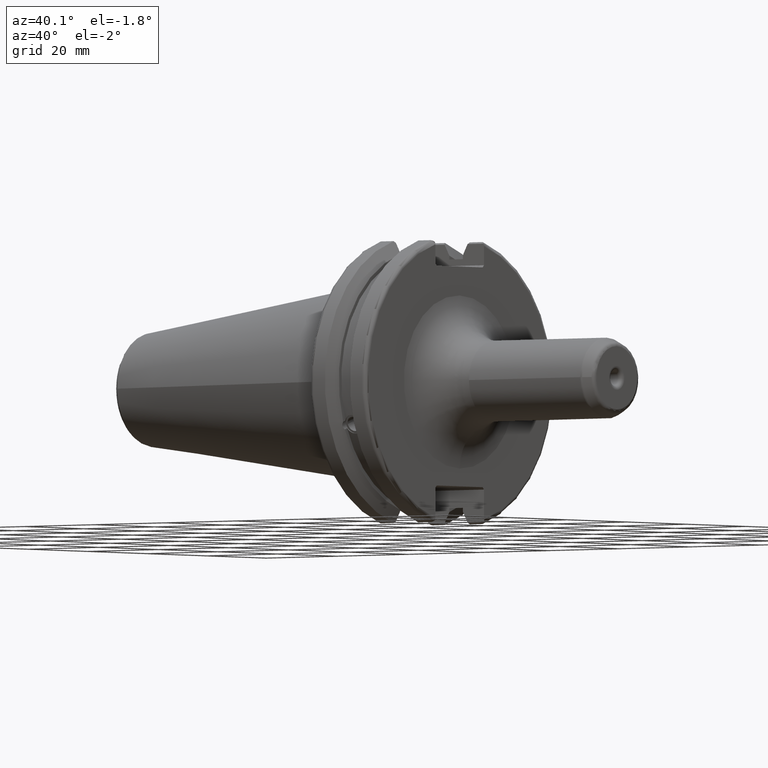
[diagram: clean part render]
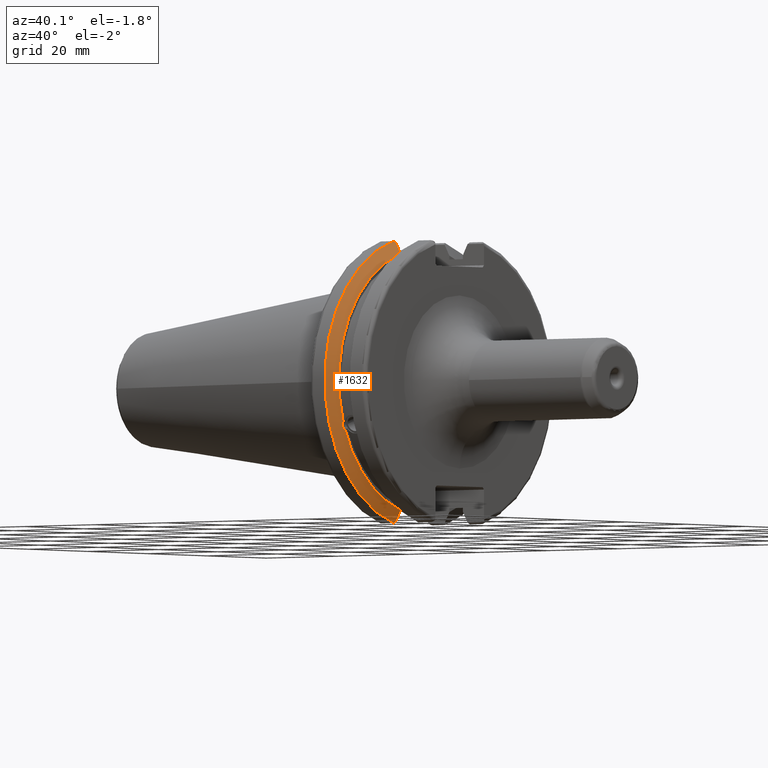
[diagram: same view with one face highlighted and labeled with its STEP entity id]
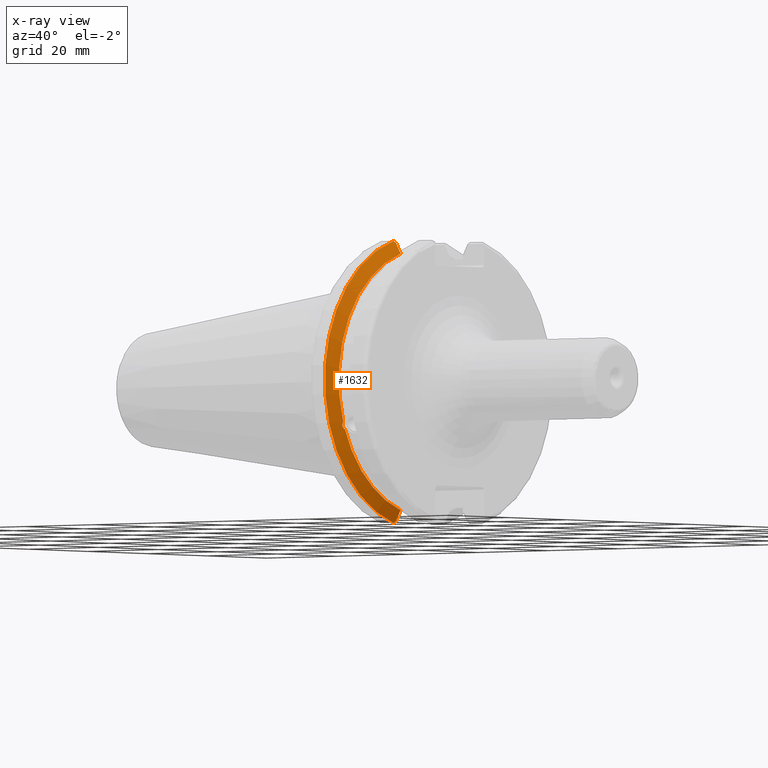
[diagram: x-ray of the same camera — body ghosted, the highlighted face saturated]
A machine part, auxiliary view. The second image highlights one B-rep face of the part: STEP entity #1632.
The next image is the same camera in x-ray: the body ghosted, the highlighted face saturated — about 0% of this face is hidden behind the body in this view.
In plain terms, the highlighted conical surface has half-angle 60 deg.
Its self-contained STEP definition (entity closure, byte-faithful):
#25=(
BOUNDED_CURVE()
B_SPLINE_CURVE(2,(#3019,#3020,#3021),.UNSPECIFIED.,.F.,.F.)
B_SPLINE_CURVE_WITH_KNOTS((3,3),(0.,0.276549142796136),.UNSPECIFIED.)
CURVE()
GEOMETRIC_REPRESENTATION_ITEM()
RATIONAL_B_SPLINE_CURVE((1.,1.00095203903316,1.00031614444813))
REPRESENTATION_ITEM('')
);
#26=(
BOUNDED_CURVE()
B_SPLINE_CURVE(2,(#3031,#3032,#3033),.UNSPECIFIED.,.F.,.F.)
B_SPLINE_CURVE_WITH_KNOTS((3,3),(0.0550586467392022,0.33160778953585),
 .UNSPECIFIED.)
CURVE()
GEOMETRIC_REPRESENTATION_ITEM()
RATIONAL_B_SPLINE_CURVE((1.00031614445148,1.00095203904325,1.))
REPRESENTATION_ITEM('')
);
#27=(
BOUNDED_CURVE()
B_SPLINE_CURVE(2,(#3066,#3067,#3068),.UNSPECIFIED.,.F.,.F.)
B_SPLINE_CURVE_WITH_KNOTS((3,3),(0.,0.0639048713676282),.UNSPECIFIED.)
CURVE()
GEOMETRIC_REPRESENTATION_ITEM()
RATIONAL_B_SPLINE_CURVE((1.,1.00028444218284,1.00047644010574))
REPRESENTATION_ITEM('')
);
#28=(
BOUNDED_CURVE()
B_SPLINE_CURVE(2,(#3074,#3075,#3076),.UNSPECIFIED.,.F.,.F.)
B_SPLINE_CURVE_WITH_KNOTS((3,3),(0.329353533631205,0.393258405001025),
 .UNSPECIFIED.)
CURVE()
GEOMETRIC_REPRESENTATION_ITEM()
RATIONAL_B_SPLINE_CURVE((1.00047644010572,1.00028444218283,1.))
REPRESENTATION_ITEM('')
);
#64=CONICAL_SURFACE('',#1840,30.3546886482472,1.0471975511966);
#78=B_SPLINE_CURVE_WITH_KNOTS('',3,(#2638,#2639,#2640,#2641,#2642,#2643,
#2644,#2645,#2646,#2647,#2648,#2649,#2650,#2651),.UNSPECIFIED.,.F.,.F.,
(4,2,2,2,2,2,4),(0.451995700189024,0.464547828547662,0.504528771685167,
0.544509714822672,0.584490657960178,0.624471601097683,0.63702372945632),
 .UNSPECIFIED.);
#456=FACE_OUTER_BOUND('',#561,.T.);
#561=EDGE_LOOP('',(#1523,#1524,#1525,#1526,#1527,#1528,#1529,#1530));
#601=CIRCLE('',#1734,28.9593772964944);
#623=CIRCLE('',#1790,31.75);
#641=CIRCLE('',#1841,28.9593772964944);
#697=VERTEX_POINT('',#2635);
#698=VERTEX_POINT('',#2637);
#715=VERTEX_POINT('',#2729);
#775=VERTEX_POINT('',#3016);
#776=VERTEX_POINT('',#3018);
#779=VERTEX_POINT('',#3030);
#783=VERTEX_POINT('',#3064);
#784=VERTEX_POINT('',#3070);
#878=EDGE_CURVE('',#698,#697,#78,.T.);
#902=EDGE_CURVE('',#698,#715,#601,.T.);
#985=EDGE_CURVE('',#776,#775,#25,.T.);
#991=EDGE_CURVE('',#779,#715,#26,.T.);
#999=EDGE_CURVE('',#783,#775,#27,.T.);
#1001=EDGE_CURVE('',#783,#784,#623,.T.);
#1002=EDGE_CURVE('',#779,#784,#28,.T.);
#1046=EDGE_CURVE('',#776,#697,#641,.T.);
#1523=ORIENTED_EDGE('',*,*,#878,.T.);
#1524=ORIENTED_EDGE('',*,*,#1046,.F.);
#1525=ORIENTED_EDGE('',*,*,#985,.T.);
#1526=ORIENTED_EDGE('',*,*,#999,.F.);
#1527=ORIENTED_EDGE('',*,*,#1001,.T.);
#1528=ORIENTED_EDGE('',*,*,#1002,.F.);
#1529=ORIENTED_EDGE('',*,*,#991,.T.);
#1530=ORIENTED_EDGE('',*,*,#902,.F.);
#1632=ADVANCED_FACE('',(#456),#64,.T.);
#1734=AXIS2_PLACEMENT_3D('',#2730,#2031,#2032);
#1790=AXIS2_PLACEMENT_3D('',#3072,#2184,#2185);
#1840=AXIS2_PLACEMENT_3D('',#3192,#2305,#2306);
#1841=AXIS2_PLACEMENT_3D('',#3193,#2307,#2308);
#2031=DIRECTION('center_axis',(1.,0.,0.));
#2032=DIRECTION('ref_axis',(0.,0.,-1.));
#2184=DIRECTION('center_axis',(1.,0.,0.));
#2185=DIRECTION('ref_axis',(0.,0.,-1.));
#2305=DIRECTION('center_axis',(-1.,0.,0.));
#2306=DIRECTION('ref_axis',(0.,-1.,-1.22464679914735E-16));
#2307=DIRECTION('center_axis',(1.,0.,0.));
#2308=DIRECTION('ref_axis',(0.,0.,-1.));
#2635=CARTESIAN_POINT('',(9.2191,-27.4956274489925,-9.09043478536245));
#2637=CARTESIAN_POINT('',(9.2191,-26.9060914640648,-10.7101715919071));
#2638=CARTESIAN_POINT('Ctrl Pts',(9.2191,-26.9060914640648,-10.7101715919071));
#2639=CARTESIAN_POINT('Ctrl Pts',(9.20497959280038,-26.9406927482839,-10.6893765730703));
#2640=CARTESIAN_POINT('Ctrl Pts',(9.19150701821434,-26.9744191989197,-10.6676007180673));
#2641=CARTESIAN_POINT('Ctrl Pts',(9.13811855884095,-27.1113422433189,-10.5723885976054));
#2642=CARTESIAN_POINT('Ctrl Pts',(9.09998029158246,-27.2180531796526,-10.4801333026531));
#2643=CARTESIAN_POINT('Ctrl Pts',(9.04778935539424,-27.3968610665578,-10.2639559818059));
#2644=CARTESIAN_POINT('Ctrl Pts',(9.0341,-27.4684373304961,-10.139516340139));
#2645=CARTESIAN_POINT('Ctrl Pts',(9.0341,-27.559599249844,-9.8890510252165));
#2646=CARTESIAN_POINT('Ctrl Pts',(9.04778935539424,-27.5847569104122,-9.74771639360671));
#2647=CARTESIAN_POINT('Ctrl Pts',(9.09998029158246,-27.5867382255984,-9.46717946402648));
#2648=CARTESIAN_POINT('Ctrl Pts',(9.13811855884095,-27.5642934663232,-9.32791534028656));
#2649=CARTESIAN_POINT('Ctrl Pts',(9.19150701821434,-27.5206055003512,-9.16696618806877));
#2650=CARTESIAN_POINT('Ctrl Pts',(9.20497959280038,-27.5087667900418,-9.12860597076218));
#2651=CARTESIAN_POINT('Ctrl Pts',(9.2191,-27.4956274489925,-9.09043478536245));
#2729=CARTESIAN_POINT('',(9.2191,-8.19,-27.7771386827498));
#2730=CARTESIAN_POINT('Origin',(9.2191,0.,0.));
#3016=CARTESIAN_POINT('',(7.88668530351257,-8.19,30.1755016258903));
#3018=CARTESIAN_POINT('',(9.2191,-8.19,27.7771386827498));
#3019=CARTESIAN_POINT('Ctrl Pts',(9.2191,-8.19,27.7771386827498));
#3020=CARTESIAN_POINT('Ctrl Pts',(8.58046356152393,-8.19,28.9303689539705));
#3021=CARTESIAN_POINT('Ctrl Pts',(7.88668530351257,-8.19,30.1755016258903));
#3030=CARTESIAN_POINT('',(7.88668530351256,-8.19,-30.1755016258903));
#3031=CARTESIAN_POINT('Ctrl Pts',(7.88668530351256,-8.19,-30.1755016258903));
#3032=CARTESIAN_POINT('Ctrl Pts',(8.5804635615235,-8.19,-28.9303689539712));
#3033=CARTESIAN_POINT('Ctrl Pts',(9.2191,-8.19,-27.7771386827498));
#3064=CARTESIAN_POINT('',(7.60793323092436,-8.67204822802685,30.5427254764662));
#3066=CARTESIAN_POINT('Ctrl Pts',(7.60793323092436,-8.67204822802686,30.5427254764662));
#3067=CARTESIAN_POINT('Ctrl Pts',(7.74899148121626,-8.42917748262648,30.357706789263));
#3068=CARTESIAN_POINT('Ctrl Pts',(7.88668530351257,-8.19,30.1755016258903));
#3070=CARTESIAN_POINT('',(7.60793323092436,-8.67204822802685,-30.5427254764662));
#3072=CARTESIAN_POINT('Origin',(7.60793323092436,0.,0.));
#3074=CARTESIAN_POINT('Ctrl Pts',(7.88668530351256,-8.19,-30.1755016258903));
#3075=CARTESIAN_POINT('Ctrl Pts',(7.74899148121159,-8.42917748263467,-30.3577067892692));
#3076=CARTESIAN_POINT('Ctrl Pts',(7.60793323092435,-8.67204822802687,-30.5427254764662));
#3192=CARTESIAN_POINT('Origin',(8.41351661546218,0.,0.));
#3193=CARTESIAN_POINT('Origin',(9.2191,0.,0.));